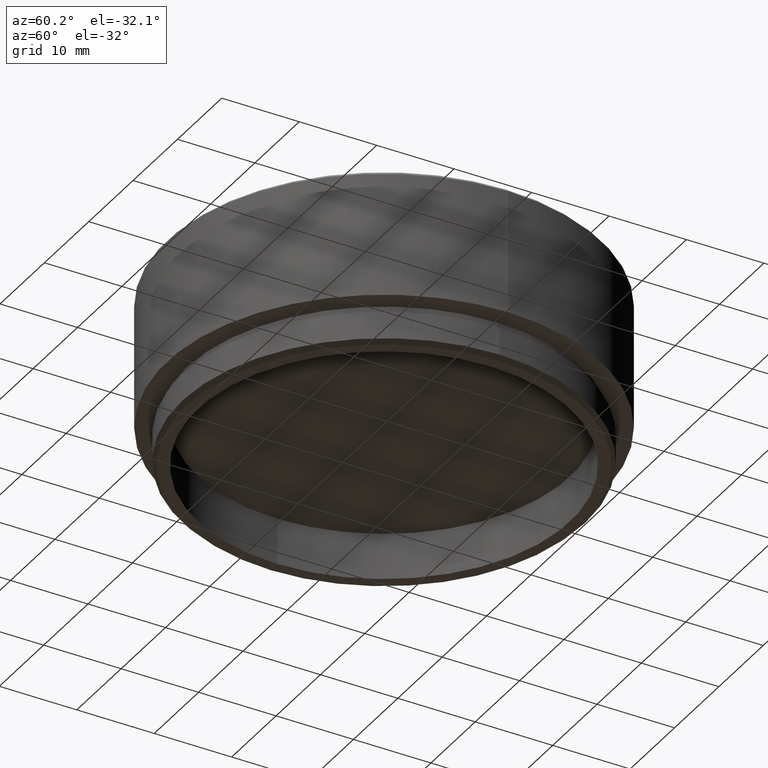
[diagram: clean part render]
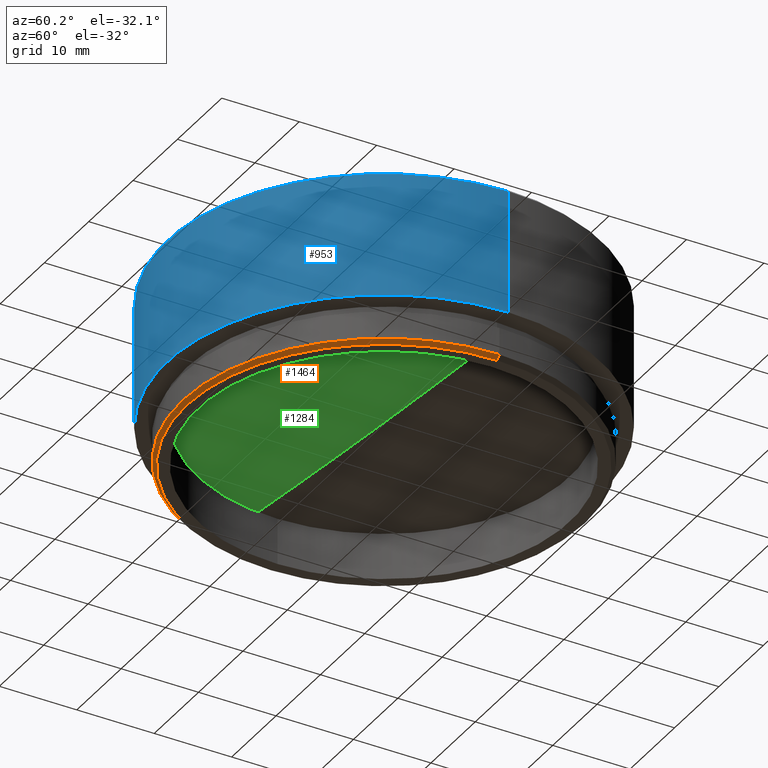
[diagram: same view with three faces highlighted in distinct colors, each labeled with its STEP entity id]
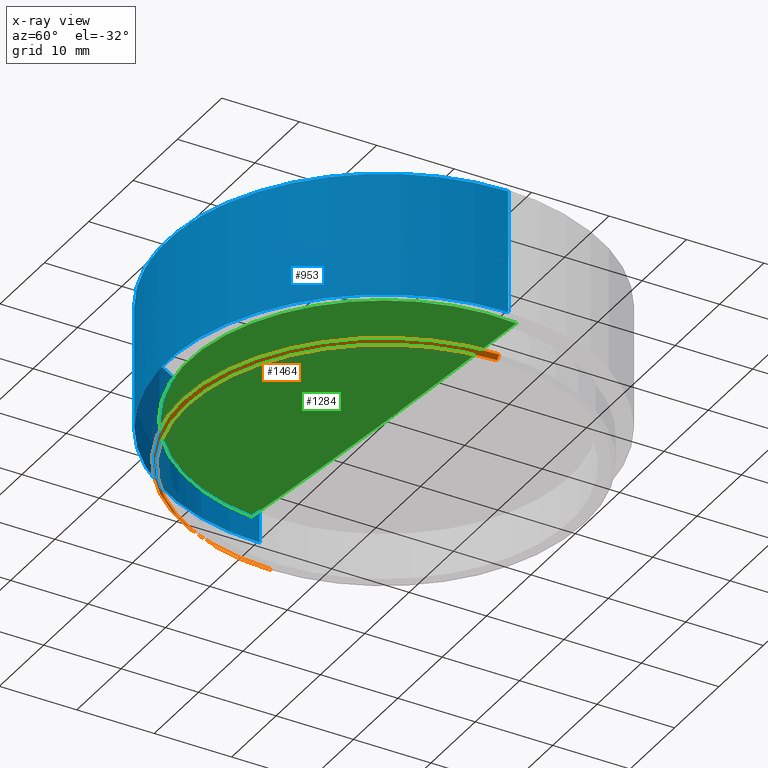
[diagram: x-ray of the same camera — body ghosted, the three highlighted faces saturated]
A machine part, auxiliary view with three faces highlighted in distinct colors.
The next image is the same camera in x-ray (body ghosted, the three faces saturated) — at least one of them is partly hidden behind the body in this view.
Their STEP definitions:

[orange] entity #1464 — the highlighted conical surface has half-angle 45 deg.
#10 = ORIENTED_EDGE ( 'NONE', *, *, #1496, .F. ) ;
#16 = EDGE_CURVE ( 'NONE', #1694, #1542, #940, .T. ) ;
#87 = ORIENTED_EDGE ( 'NONE', *, *, #1350, .T. ) ;
#156 = CARTESIAN_POINT ( 'NONE',  ( -25.49999999999998934, 3.153465507804433615E-15, 0.000000000000000000 ) ) ;
#224 = DIRECTION ( 'NONE',  ( -0.000000000000000000, -0.000000000000000000, -1.000000000000000000 ) ) ;
#253 = DIRECTION ( 'NONE',  ( 0.000000000000000000, 0.000000000000000000, 1.000000000000000000 ) ) ;
#281 = CONICAL_SURFACE ( 'NONE', #754, 25.49999999999998934, 0.7853981633974378429 ) ;
#297 = VECTOR ( 'NONE', #1725, 1000.000000000000000 ) ;
#310 = CARTESIAN_POINT ( 'NONE',  ( 25.49999999999998934, 0.000000000000000000, 0.000000000000000000 ) ) ;
#320 = CARTESIAN_POINT ( 'NONE',  ( 26.00000000000000355, 3.184081677783118585E-15, 0.5000000000000247580 ) ) ;
#357 = CARTESIAN_POINT ( 'NONE',  ( 0.000000000000000000, 0.000000000000000000, 0.000000000000000000 ) ) ;
#388 = VERTEX_POINT ( 'NONE', #320 ) ;
#424 = LINE ( 'NONE', #829, #1723 ) ;
#505 = AXIS2_PLACEMENT_3D ( 'NONE', #898, #253, #791 ) ;
#539 = CIRCLE ( 'NONE', #1577, 25.49999999999998934 ) ;
#602 = DIRECTION ( 'NONE',  ( 1.000000000000000000, 0.000000000000000000, 0.000000000000000000 ) ) ;
#703 = VERTEX_POINT ( 'NONE', #310 ) ;
#734 = CARTESIAN_POINT ( 'NONE',  ( 0.000000000000000000, 0.000000000000000000, 0.000000000000000000 ) ) ;
#754 = AXIS2_PLACEMENT_3D ( 'NONE', #734, #1273, #602 ) ;
#766 = CARTESIAN_POINT ( 'NONE',  ( -26.00000000000000355, 0.000000000000000000, 0.5000000000000247580 ) ) ;
#791 = DIRECTION ( 'NONE',  ( 1.000000000000000000, 0.000000000000000000, 0.000000000000000000 ) ) ;
#829 = CARTESIAN_POINT ( 'NONE',  ( 25.49999999999998934, 0.000000000000000000, 0.000000000000000000 ) ) ;
#881 = ORIENTED_EDGE ( 'NONE', *, *, #1600, .F. ) ;
#898 = CARTESIAN_POINT ( 'NONE',  ( 0.000000000000000000, 0.000000000000000000, 0.5000000000000247580 ) ) ;
#910 = DIRECTION ( 'NONE',  ( 1.000000000000000000, 0.000000000000000000, 0.000000000000000000 ) ) ;
#940 = LINE ( 'NONE', #1184, #297 ) ;
#970 = DIRECTION ( 'NONE',  ( 0.7071067811865401342, 0.000000000000000000, 0.7071067811865549002 ) ) ;
#1051 = EDGE_LOOP ( 'NONE', ( #1576, #881, #87, #10 ) ) ;
#1184 = CARTESIAN_POINT ( 'NONE',  ( -25.49999999999998934, 3.122849337825749039E-15, 0.000000000000000000 ) ) ;
#1263 = CIRCLE ( 'NONE', #505, 26.00000000000000355 ) ;
#1273 = DIRECTION ( 'NONE',  ( 0.000000000000000000, 0.000000000000000000, 1.000000000000000000 ) ) ;
#1350 = EDGE_CURVE ( 'NONE', #703, #388, #424, .T. ) ;
#1464 = ADVANCED_FACE ( 'NONE', ( #1547 ), #281, .T. ) ;
#1496 = EDGE_CURVE ( 'NONE', #1542, #388, #1263, .T. ) ;
#1542 = VERTEX_POINT ( 'NONE', #766 ) ;
#1547 = FACE_OUTER_BOUND ( 'NONE', #1051, .T. ) ;
#1576 = ORIENTED_EDGE ( 'NONE', *, *, #16, .F. ) ;
#1577 = AXIS2_PLACEMENT_3D ( 'NONE', #357, #224, #910 ) ;
#1600 = EDGE_CURVE ( 'NONE', #703, #1694, #539, .T. ) ;
#1694 = VERTEX_POINT ( 'NONE', #156 ) ;
#1723 = VECTOR ( 'NONE', #970, 1000.000000000000000 ) ;
#1725 = DIRECTION ( 'NONE',  ( -0.7071067811865401342, 8.659560562354842879E-17, 0.7071067811865549002 ) ) ;

[blue] entity #953 — the highlighted cylindrical surface (partial cylindrical patch) has radius 28 mm, axis along (-0, -0, -1).
#19 = AXIS2_PLACEMENT_3D ( 'NONE', #1700, #1200, #368 ) ;
#31 = DIRECTION ( 'NONE',  ( -0.000000000000000000, -0.000000000000000000, -1.000000000000000000 ) ) ;
#147 = VECTOR ( 'NONE', #733, 1000.000000000000000 ) ;
#186 = VERTEX_POINT ( 'NONE', #1338 ) ;
#189 = CIRCLE ( 'NONE', #19, 28.00000000000000000 ) ;
#196 = LINE ( 'NONE', #1147, #147 ) ;
#230 = VERTEX_POINT ( 'NONE', #1616 ) ;
#237 = CARTESIAN_POINT ( 'NONE',  ( -28.00000000000000000, 0.000000000000000000, 21.50000000000000000 ) ) ;
#264 = CARTESIAN_POINT ( 'NONE',  ( 28.00000000000000000, 3.429011037612589276E-15, 5.000000000000000000 ) ) ;
#292 = FACE_OUTER_BOUND ( 'NONE', #681, .T. ) ;
#301 = ORIENTED_EDGE ( 'NONE', *, *, #1334, .T. ) ;
#304 = VECTOR ( 'NONE', #1573, 1000.000000000000000 ) ;
#346 = ORIENTED_EDGE ( 'NONE', *, *, #455, .F. ) ;
#368 = DIRECTION ( 'NONE',  ( -1.000000000000000000, 0.000000000000000000, 0.000000000000000000 ) ) ;
#444 = CIRCLE ( 'NONE', #1431, 28.00000000000000000 ) ;
#455 = EDGE_CURVE ( 'NONE', #186, #538, #196, .T. ) ;
#538 = VERTEX_POINT ( 'NONE', #264 ) ;
#577 = AXIS2_PLACEMENT_3D ( 'NONE', #1632, #31, #1517 ) ;
#681 = EDGE_LOOP ( 'NONE', ( #346, #301, #1347, #1701 ) ) ;
#693 = CARTESIAN_POINT ( 'NONE',  ( 0.000000000000000000, 0.000000000000000000, 20.99999999999999289 ) ) ;
#733 = DIRECTION ( 'NONE',  ( -0.000000000000000000, -0.000000000000000000, -1.000000000000000000 ) ) ;
#790 = EDGE_CURVE ( 'NONE', #230, #1662, #1438, .T. ) ;
#847 = CARTESIAN_POINT ( 'NONE',  ( -28.00000000000000000, 0.000000000000000000, 5.000000000000000000 ) ) ;
#953 = ADVANCED_FACE ( 'NONE', ( #292 ), #975, .T. ) ;
#975 = CYLINDRICAL_SURFACE ( 'NONE', #577, 28.00000000000000000 ) ;
#1147 = CARTESIAN_POINT ( 'NONE',  ( 28.00000000000000000, 3.429011037612589276E-15, 21.50000000000000000 ) ) ;
#1200 = DIRECTION ( 'NONE',  ( 0.000000000000000000, 0.000000000000000000, -1.000000000000000000 ) ) ;
#1334 = EDGE_CURVE ( 'NONE', #186, #230, #444, .T. ) ;
#1338 = CARTESIAN_POINT ( 'NONE',  ( 28.00000000000000000, 3.429011037612589276E-15, 20.99999999999999289 ) ) ;
#1347 = ORIENTED_EDGE ( 'NONE', *, *, #790, .T. ) ;
#1368 = DIRECTION ( 'NONE',  ( 0.000000000000000000, 0.000000000000000000, -1.000000000000000000 ) ) ;
#1431 = AXIS2_PLACEMENT_3D ( 'NONE', #693, #1368, #1514 ) ;
#1438 = LINE ( 'NONE', #237, #304 ) ;
#1514 = DIRECTION ( 'NONE',  ( 1.000000000000000000, 0.000000000000000000, 0.000000000000000000 ) ) ;
#1517 = DIRECTION ( 'NONE',  ( -1.000000000000000000, 0.000000000000000000, 0.000000000000000000 ) ) ;
#1541 = EDGE_CURVE ( 'NONE', #538, #1662, #189, .T. ) ;
#1573 = DIRECTION ( 'NONE',  ( -0.000000000000000000, -0.000000000000000000, -1.000000000000000000 ) ) ;
#1616 = CARTESIAN_POINT ( 'NONE',  ( -28.00000000000000000, 0.000000000000000000, 20.99999999999999289 ) ) ;
#1632 = CARTESIAN_POINT ( 'NONE',  ( 0.000000000000000000, 0.000000000000000000, 21.50000000000000000 ) ) ;
#1662 = VERTEX_POINT ( 'NONE', #847 ) ;
#1700 = CARTESIAN_POINT ( 'NONE',  ( 0.000000000000000000, 0.000000000000000000, 5.000000000000000000 ) ) ;
#1701 = ORIENTED_EDGE ( 'NONE', *, *, #1541, .F. ) ;

[green] entity #1284 — the highlighted toroidal blend (fillet) surface has major radius 1.9244 mm and minor (blend) radius 1023.3 mm.
#46 = CARTESIAN_POINT ( 'NONE',  ( -25.20530239108664716, 3.098681079656374849E-15, -5.642115760026819693 ) ) ;
#108 = CARTESIAN_POINT ( 'NONE',  ( -1.924381606529909972, 0.000000000000000000, 1017.298190536575930 ) ) ;
#116 = DIRECTION ( 'NONE',  ( 0.000000000000000000, 0.000000000000000000, -1.000000000000000000 ) ) ;
#137 = VERTEX_POINT ( 'NONE', #801 ) ;
#216 = AXIS2_PLACEMENT_3D ( 'NONE', #265, #1081, #1499 ) ;
#217 = EDGE_CURVE ( 'NONE', #137, #646, #1516, .T. ) ;
#229 = DIRECTION ( 'NONE',  ( 1.000000000000000000, 0.000000000000000000, 0.000000000000000000 ) ) ;
#265 = CARTESIAN_POINT ( 'NONE',  ( 0.000000000000000000, 0.000000000000000000, 1017.298190536575930 ) ) ;
#272 = VERTEX_POINT ( 'NONE', #794 ) ;
#392 = DIRECTION ( 'NONE',  ( 0.000000000000000000, -1.000000000000000000, 0.000000000000000000 ) ) ;
#523 = AXIS2_PLACEMENT_3D ( 'NONE', #108, #392, #116 ) ;
#579 = EDGE_CURVE ( 'NONE', #137, #272, #1028, .T. ) ;
#597 = DIRECTION ( 'NONE',  ( 0.000000000000000000, 0.000000000000000000, -1.000000000000000000 ) ) ;
#637 = DIRECTION ( 'NONE',  ( 1.224646799147351975E-16, 1.000000000000000000, 0.000000000000000000 ) ) ;
#646 = VERTEX_POINT ( 'NONE', #46 ) ;
#759 = ORIENTED_EDGE ( 'NONE', *, *, #579, .T. ) ;
#794 = CARTESIAN_POINT ( 'NONE',  ( 25.20530239108664716, 0.000000000000000000, -5.642115760026819693 ) ) ;
#801 = CARTESIAN_POINT ( 'NONE',  ( -3.512815038853034997E-14, 0.000000000000000000, -6.000000000000000000 ) ) ;
#844 = TOROIDAL_SURFACE ( 'NONE', #216, -1.924381606529909972, 1023.300000000000068 ) ;
#900 = EDGE_LOOP ( 'NONE', ( #1001, #759, #967 ) ) ;
#967 = ORIENTED_EDGE ( 'NONE', *, *, #1104, .T. ) ;
#1001 = ORIENTED_EDGE ( 'NONE', *, *, #217, .F. ) ;
#1028 = CIRCLE ( 'NONE', #523, 1023.300000000000068 ) ;
#1029 = AXIS2_PLACEMENT_3D ( 'NONE', #1481, #637, #1079 ) ;
#1079 = DIRECTION ( 'NONE',  ( -1.000000000000000000, 1.224646799147351975E-16, 0.000000000000000000 ) ) ;
#1081 = DIRECTION ( 'NONE',  ( 0.000000000000000000, 0.000000000000000000, 1.000000000000000000 ) ) ;
#1088 = FACE_OUTER_BOUND ( 'NONE', #900, .T. ) ;
#1104 = EDGE_CURVE ( 'NONE', #272, #646, #1365, .T. ) ;
#1144 = AXIS2_PLACEMENT_3D ( 'NONE', #1698, #597, #229 ) ;
#1284 = ADVANCED_FACE ( 'NONE', ( #1088 ), #844, .T. ) ;
#1365 = CIRCLE ( 'NONE', #1144, 25.20530239108664716 ) ;
#1481 = CARTESIAN_POINT ( 'NONE',  ( 1.924381606529909972, -2.356687774774889812E-16, 1017.298190536575930 ) ) ;
#1499 = DIRECTION ( 'NONE',  ( -1.000000000000000000, 0.000000000000000000, 0.000000000000000000 ) ) ;
#1516 = CIRCLE ( 'NONE', #1029, 1023.300000000000068 ) ;
#1698 = CARTESIAN_POINT ( 'NONE',  ( 0.000000000000000000, 0.000000000000000000, -5.642115760026819693 ) ) ;